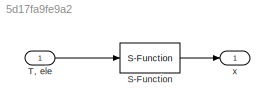
MODEL slx_5d17fa9fe9a2
KIND model
BLOCK [S-Function] S-Function
  EnableBusSupport = off
  FunctionName = f16sfcn
  Parameters = X0
  Ports = [1, 1]
BLOCK [Inport] T, ele
  IconDisplay = Port number
  PortDimensions = 2
BLOCK [Outport] x
  IconDisplay = Port number
  PortDimensions = 4
LINE S-Function:1 -> x:1
LINE T, ele:1 -> S-Function:1
